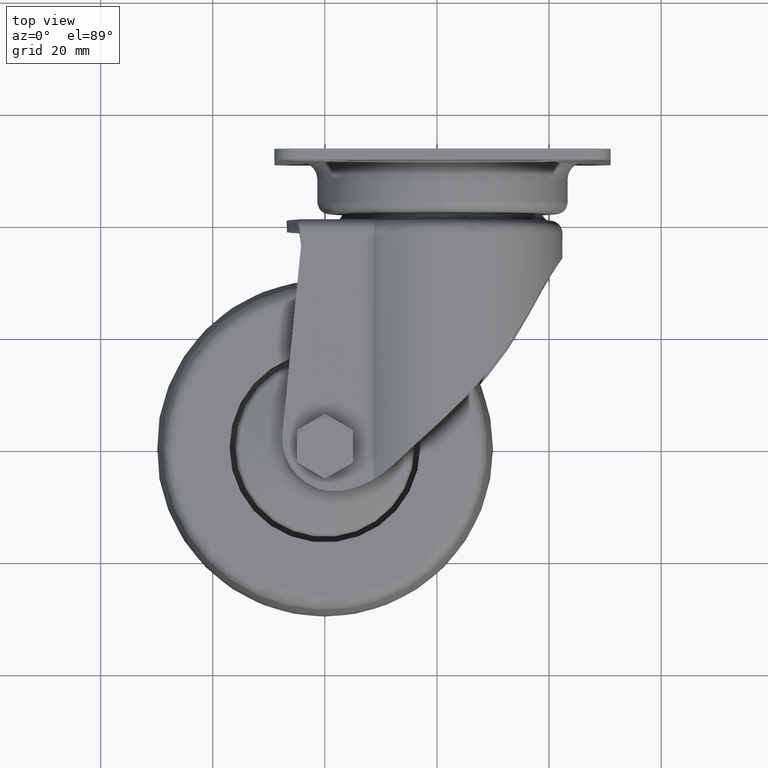
[diagram: clean part render]
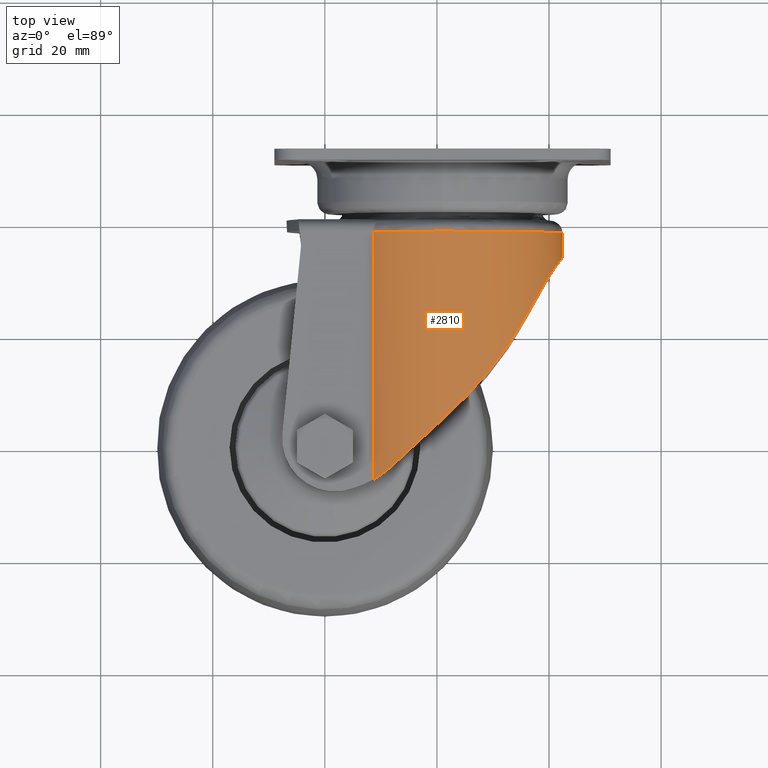
[diagram: same view with one face highlighted and labeled with its STEP entity id]
A machine part, top view. The second image highlights one B-rep face of the part: STEP entity #2810.
In plain terms, the highlighted cylindrical surface (partial cylindrical patch) has radius 21.4 mm, axis along (0, -1, 0).
Its self-contained STEP definition (entity closure, byte-faithful):
#40=B_SPLINE_CURVE_WITH_KNOTS('',3,(#4934,#4935,#4936,#4937,#4938,#4939),
 .UNSPECIFIED.,.F.,.F.,(4,2,4),(-10.2525177802019,-9.94501927905911,-9.8183472886997),
 .UNSPECIFIED.);
#42=B_SPLINE_CURVE_WITH_KNOTS('',3,(#4950,#4951,#4952,#4953,#4954,#4955),
 .UNSPECIFIED.,.F.,.F.,(4,2,4),(-5.78989427319025,-5.66322228283083,-5.35572378168804),
 .UNSPECIFIED.);
#45=B_SPLINE_CURVE_WITH_KNOTS('',3,(#5017,#5018,#5019,#5020,#5021,#5022,
#5023,#5024,#5025,#5026,#5027,#5028,#5029,#5030),.UNSPECIFIED.,.F.,.F.,
(4,2,2,2,2,2,4),(4.89998772397462,5.34413037046781,5.81096988795556,6.27780940544331,
6.74464892293105,7.2114884404188,7.65563108691199),.UNSPECIFIED.);
#46=B_SPLINE_CURVE_WITH_KNOTS('',3,(#5032,#5033,#5034,#5035,#5036,#5037),
 .UNSPECIFIED.,.F.,.F.,(4,2,4),(8.93102719517088,10.0529426694714,10.1889680806466),
 .UNSPECIFIED.);
#47=B_SPLINE_CURVE_WITH_KNOTS('',3,(#5039,#5040,#5041,#5042,#5043,#5044,
#5045,#5046),.UNSPECIFIED.,.F.,.F.,(4,2,2,4),(11.0832729890058,11.4574043632689,
12.1372751301213,12.802361108636),.UNSPECIFIED.);
#48=B_SPLINE_CURVE_WITH_KNOTS('',3,(#5054,#5055,#5056,#5057,#5058,#5059,
#5060,#5061),.UNSPECIFIED.,.F.,.F.,(4,2,2,4),(3.58438395109433,4.24946992960912,
4.9293406964615,5.30347207072453),.UNSPECIFIED.);
#49=B_SPLINE_CURVE_WITH_KNOTS('',3,(#5062,#5063,#5064,#5065,#5066,#5067),
 .UNSPECIFIED.,.F.,.F.,(4,2,4),(4.7622575854947,4.8982829966699,6.02019847097044),
 .UNSPECIFIED.);
#71=ELLIPSE('',#3280,29.051900894958,21.4);
#73=ELLIPSE('',#3297,29.051900894958,21.4);
#211=LINE('',#5049,#342);
#212=LINE('',#5052,#343);
#342=VECTOR('',#3968,1000.);
#343=VECTOR('',#3971,1000.);
#439=CYLINDRICAL_SURFACE('',#3296,21.4);
#673=FACE_OUTER_BOUND('',#872,.T.);
#872=EDGE_LOOP('',(#2267,#2268,#2269,#2270,#2271,#2272,#2273,#2274,#2275,
#2276,#2277,#2278));
#1062=CIRCLE('',#3298,21.4);
#1310=VERTEX_POINT('',#4910);
#1313=VERTEX_POINT('',#4915);
#1318=VERTEX_POINT('',#4931);
#1319=VERTEX_POINT('',#4933);
#1321=VERTEX_POINT('',#4949);
#1335=VERTEX_POINT('',#5015);
#1336=VERTEX_POINT('',#5016);
#1337=VERTEX_POINT('',#5031);
#1338=VERTEX_POINT('',#5038);
#1339=VERTEX_POINT('',#5048);
#1340=VERTEX_POINT('',#5050);
#1341=VERTEX_POINT('',#5053);
#1642=EDGE_CURVE('',#1313,#1310,#71,.T.);
#1647=EDGE_CURVE('',#1319,#1318,#40,.T.);
#1650=EDGE_CURVE('',#1321,#1310,#42,.T.);
#1670=EDGE_CURVE('',#1335,#1336,#45,.T.);
#1671=EDGE_CURVE('',#1335,#1337,#46,.T.);
#1672=EDGE_CURVE('',#1337,#1338,#47,.T.);
#1673=EDGE_CURVE('',#1319,#1338,#73,.T.);
#1674=EDGE_CURVE('',#1318,#1339,#211,.F.);
#1675=EDGE_CURVE('',#1339,#1340,#1062,.T.);
#1676=EDGE_CURVE('',#1340,#1321,#212,.T.);
#1677=EDGE_CURVE('',#1313,#1341,#48,.T.);
#1678=EDGE_CURVE('',#1341,#1336,#49,.T.);
#2267=ORIENTED_EDGE('',*,*,#1670,.F.);
#2268=ORIENTED_EDGE('',*,*,#1671,.T.);
#2269=ORIENTED_EDGE('',*,*,#1672,.T.);
#2270=ORIENTED_EDGE('',*,*,#1673,.F.);
#2271=ORIENTED_EDGE('',*,*,#1647,.T.);
#2272=ORIENTED_EDGE('',*,*,#1674,.T.);
#2273=ORIENTED_EDGE('',*,*,#1675,.T.);
#2274=ORIENTED_EDGE('',*,*,#1676,.T.);
#2275=ORIENTED_EDGE('',*,*,#1650,.T.);
#2276=ORIENTED_EDGE('',*,*,#1642,.F.);
#2277=ORIENTED_EDGE('',*,*,#1677,.T.);
#2278=ORIENTED_EDGE('',*,*,#1678,.T.);
#2810=ADVANCED_FACE('',(#673),#439,.T.);
#3280=AXIS2_PLACEMENT_3D('',#4917,#3920,#3921);
#3296=AXIS2_PLACEMENT_3D('',#5014,#3964,#3965);
#3297=AXIS2_PLACEMENT_3D('',#5047,#3966,#3967);
#3298=AXIS2_PLACEMENT_3D('',#5051,#3969,#3970);
#3920=DIRECTION('center_axis',(0.676314784341893,-0.736612728969965,0.));
#3921=DIRECTION('ref_axis',(-0.736612728969965,-0.676314784341893,0.));
#3964=DIRECTION('center_axis',(0.,-1.,0.));
#3965=DIRECTION('ref_axis',(1.,0.,-2.83276944882399E-16));
#3966=DIRECTION('center_axis',(0.676314784341893,-0.736612728969965,0.));
#3967=DIRECTION('ref_axis',(-0.736612728969965,-0.676314784341893,0.));
#3968=DIRECTION('',(0.,-1.,0.));
#3969=DIRECTION('center_axis',(0.,-1.,0.));
#3970=DIRECTION('ref_axis',(0.,0.,-1.));
#3971=DIRECTION('',(0.,-1.,0.));
#4910=CARTESIAN_POINT('',(12.0700000000002,-3.37899999999986,19.4477530835828));
#4915=CARTESIAN_POINT('',(21.1099999999999,4.92099999999993,21.3997172878522));
#4917=CARTESIAN_POINT('Origin',(21.,4.82000442477876,0.));
#4931=CARTESIAN_POINT('',(8.68293866216459,-5.85453244256219,-17.5));
#4933=CARTESIAN_POINT('',(12.0700000000002,-3.37899999999986,-19.4477530835828));
#4934=CARTESIAN_POINT('Ctrl Pts',(12.0700000000002,-3.37899999999983,-19.4477530835828));
#4935=CARTESIAN_POINT('Ctrl Pts',(11.3384994650025,-4.05678881689918,-19.1118633923956));
#4936=CARTESIAN_POINT('Ctrl Pts',(10.5237549288839,-4.69319662743553,-18.6855384315071));
#4937=CARTESIAN_POINT('Ctrl Pts',(9.36057593138941,-5.45666135645005,-17.9622800765053));
#4938=CARTESIAN_POINT('Ctrl Pts',(9.01970207602005,-5.66394487614141,-17.7370248928455));
#4939=CARTESIAN_POINT('Ctrl Pts',(8.68293866216458,-5.85453244256218,-17.5));
#4949=CARTESIAN_POINT('',(8.68293866216459,-5.85453244256219,17.5));
#4950=CARTESIAN_POINT('Ctrl Pts',(8.68293866216458,-5.85453244256218,17.5));
#4951=CARTESIAN_POINT('Ctrl Pts',(9.01970207602005,-5.66394487614141,17.7370248928455));
#4952=CARTESIAN_POINT('Ctrl Pts',(9.36057593138942,-5.45666135645005,17.9622800765053));
#4953=CARTESIAN_POINT('Ctrl Pts',(10.5237549288839,-4.69319662743553,18.6855384315071));
#4954=CARTESIAN_POINT('Ctrl Pts',(11.3384994650025,-4.05678881689917,19.1118633923956));
#4955=CARTESIAN_POINT('Ctrl Pts',(12.0700000000002,-3.37899999999982,19.4477530835828));
#5014=CARTESIAN_POINT('Origin',(21.,32.3379999999999,0.));
#5015=CARTESIAN_POINT('',(38.7884849647765,28.3920001140623,-11.8966298865654));
#5016=CARTESIAN_POINT('',(38.7884849647765,28.3920001140623,11.8966298865654));
#5017=CARTESIAN_POINT('Ctrl Pts',(38.7884849647765,28.3920001140623,-11.8966298865654));
#5018=CARTESIAN_POINT('Ctrl Pts',(39.3577084548446,29.4327741481987,-11.0454961124443));
#5019=CARTESIAN_POINT('Ctrl Pts',(39.9230062565524,30.3682057710757,-10.0708296597482));
#5020=CARTESIAN_POINT('Ctrl Pts',(40.987286244169,32.0218981173646,-7.75704637269081));
#5021=CARTESIAN_POINT('Ctrl Pts',(41.5075031827322,32.7631075922985,-6.31907166499945));
#5022=CARTESIAN_POINT('Ctrl Pts',(42.2162065765666,33.7405850293505,-3.21885494001732));
#5023=CARTESIAN_POINT('Ctrl Pts',(42.4,33.9787228168666,-1.55613172495916));
#5024=CARTESIAN_POINT('Ctrl Pts',(42.4,33.9787228168666,1.55613172495916));
#5025=CARTESIAN_POINT('Ctrl Pts',(42.2162065765666,33.7405850293505,3.21885494001732));
#5026=CARTESIAN_POINT('Ctrl Pts',(41.5075031827322,32.7631075922985,6.31907166499945));
#5027=CARTESIAN_POINT('Ctrl Pts',(40.987286244169,32.0218981173646,7.75704637269081));
#5028=CARTESIAN_POINT('Ctrl Pts',(39.9230062565524,30.3682057710757,10.0708296597482));
#5029=CARTESIAN_POINT('Ctrl Pts',(39.3577084548446,29.4327741481987,11.0454961124443));
#5030=CARTESIAN_POINT('Ctrl Pts',(38.7884849647765,28.3920001140623,11.8966298865654));
#5031=CARTESIAN_POINT('',(32.7795197701577,18.1503066436,-17.8662506974592));
#5032=CARTESIAN_POINT('Ctrl Pts',(38.788484964776,28.3920001140631,-11.8966298865661));
#5033=CARTESIAN_POINT('Ctrl Pts',(37.3255564628161,25.6684457715418,-14.0840797702548));
#5034=CARTESIAN_POINT('Ctrl Pts',(35.5253599944926,22.5233990212648,-15.9090644536892));
#5035=CARTESIAN_POINT('Ctrl Pts',(33.274830801336,18.9297941727888,-17.5322147407366));
#5036=CARTESIAN_POINT('Ctrl Pts',(33.0285061462618,18.5402403903643,-17.7020897893044));
#5037=CARTESIAN_POINT('Ctrl Pts',(32.7795197701572,18.1503066436005,-17.8662506974596));
#5038=CARTESIAN_POINT('',(21.1099999999999,4.92099999999993,-21.3997172878522));
#5039=CARTESIAN_POINT('Ctrl Pts',(32.7795197701578,18.1503066435999,-17.8662506974592));
#5040=CARTESIAN_POINT('Ctrl Pts',(32.064152971704,17.123193884257,-18.3379040671558));
#5041=CARTESIAN_POINT('Ctrl Pts',(31.3120737519927,16.0968783999334,-18.7720194954028));
#5042=CARTESIAN_POINT('Ctrl Pts',(29.1020329504754,13.2354905778588,-19.870873889576));
#5043=CARTESIAN_POINT('Ctrl Pts',(27.5675866158982,11.4244965198949,-20.433931112447));
#5044=CARTESIAN_POINT('Ctrl Pts',(24.3946834852453,8.01228326360735,-21.190514351126));
#5045=CARTESIAN_POINT('Ctrl Pts',(22.7591616292725,6.40725612755578,-21.3912401768334));
#5046=CARTESIAN_POINT('Ctrl Pts',(21.1099999999999,4.92099999999989,-21.3997172878522));
#5047=CARTESIAN_POINT('Origin',(21.,4.82000442477876,0.));
#5048=CARTESIAN_POINT('',(8.68293866216459,38.41,-17.5));
#5049=CARTESIAN_POINT('',(8.68293866216459,32.3379999999999,-17.5));
#5050=CARTESIAN_POINT('',(8.68293866216459,38.41,17.5));
#5051=CARTESIAN_POINT('Origin',(21.,38.41,0.));
#5052=CARTESIAN_POINT('',(8.68293866216459,32.3379999999999,17.5));
#5053=CARTESIAN_POINT('',(32.7795197701577,18.1503066436,17.8662506974592));
#5054=CARTESIAN_POINT('Ctrl Pts',(21.1099999999999,4.92099999999988,21.3997172878522));
#5055=CARTESIAN_POINT('Ctrl Pts',(22.7591616292724,6.40725612755577,21.3912401768334));
#5056=CARTESIAN_POINT('Ctrl Pts',(24.3946834852453,8.01228326360735,21.190514351126));
#5057=CARTESIAN_POINT('Ctrl Pts',(27.5675866158982,11.4244965198949,20.433931112447));
#5058=CARTESIAN_POINT('Ctrl Pts',(29.1020329504754,13.2354905778588,19.870873889576));
#5059=CARTESIAN_POINT('Ctrl Pts',(31.3120737519927,16.0968783999334,18.7720194954028));
#5060=CARTESIAN_POINT('Ctrl Pts',(32.064152971704,17.123193884257,18.3379040671558));
#5061=CARTESIAN_POINT('Ctrl Pts',(32.7795197701578,18.1503066435999,17.8662506974592));
#5062=CARTESIAN_POINT('Ctrl Pts',(32.7795197701572,18.1503066436005,17.8662506974596));
#5063=CARTESIAN_POINT('Ctrl Pts',(33.0285061462618,18.5402403903643,17.7020897893044));
#5064=CARTESIAN_POINT('Ctrl Pts',(33.274830801336,18.9297941727888,17.5322147407366));
#5065=CARTESIAN_POINT('Ctrl Pts',(35.5253599944926,22.5233990212647,15.9090644536892));
#5066=CARTESIAN_POINT('Ctrl Pts',(37.3255564628161,25.6684457715418,14.0840797702548));
#5067=CARTESIAN_POINT('Ctrl Pts',(38.788484964776,28.3920001140631,11.8966298865661));